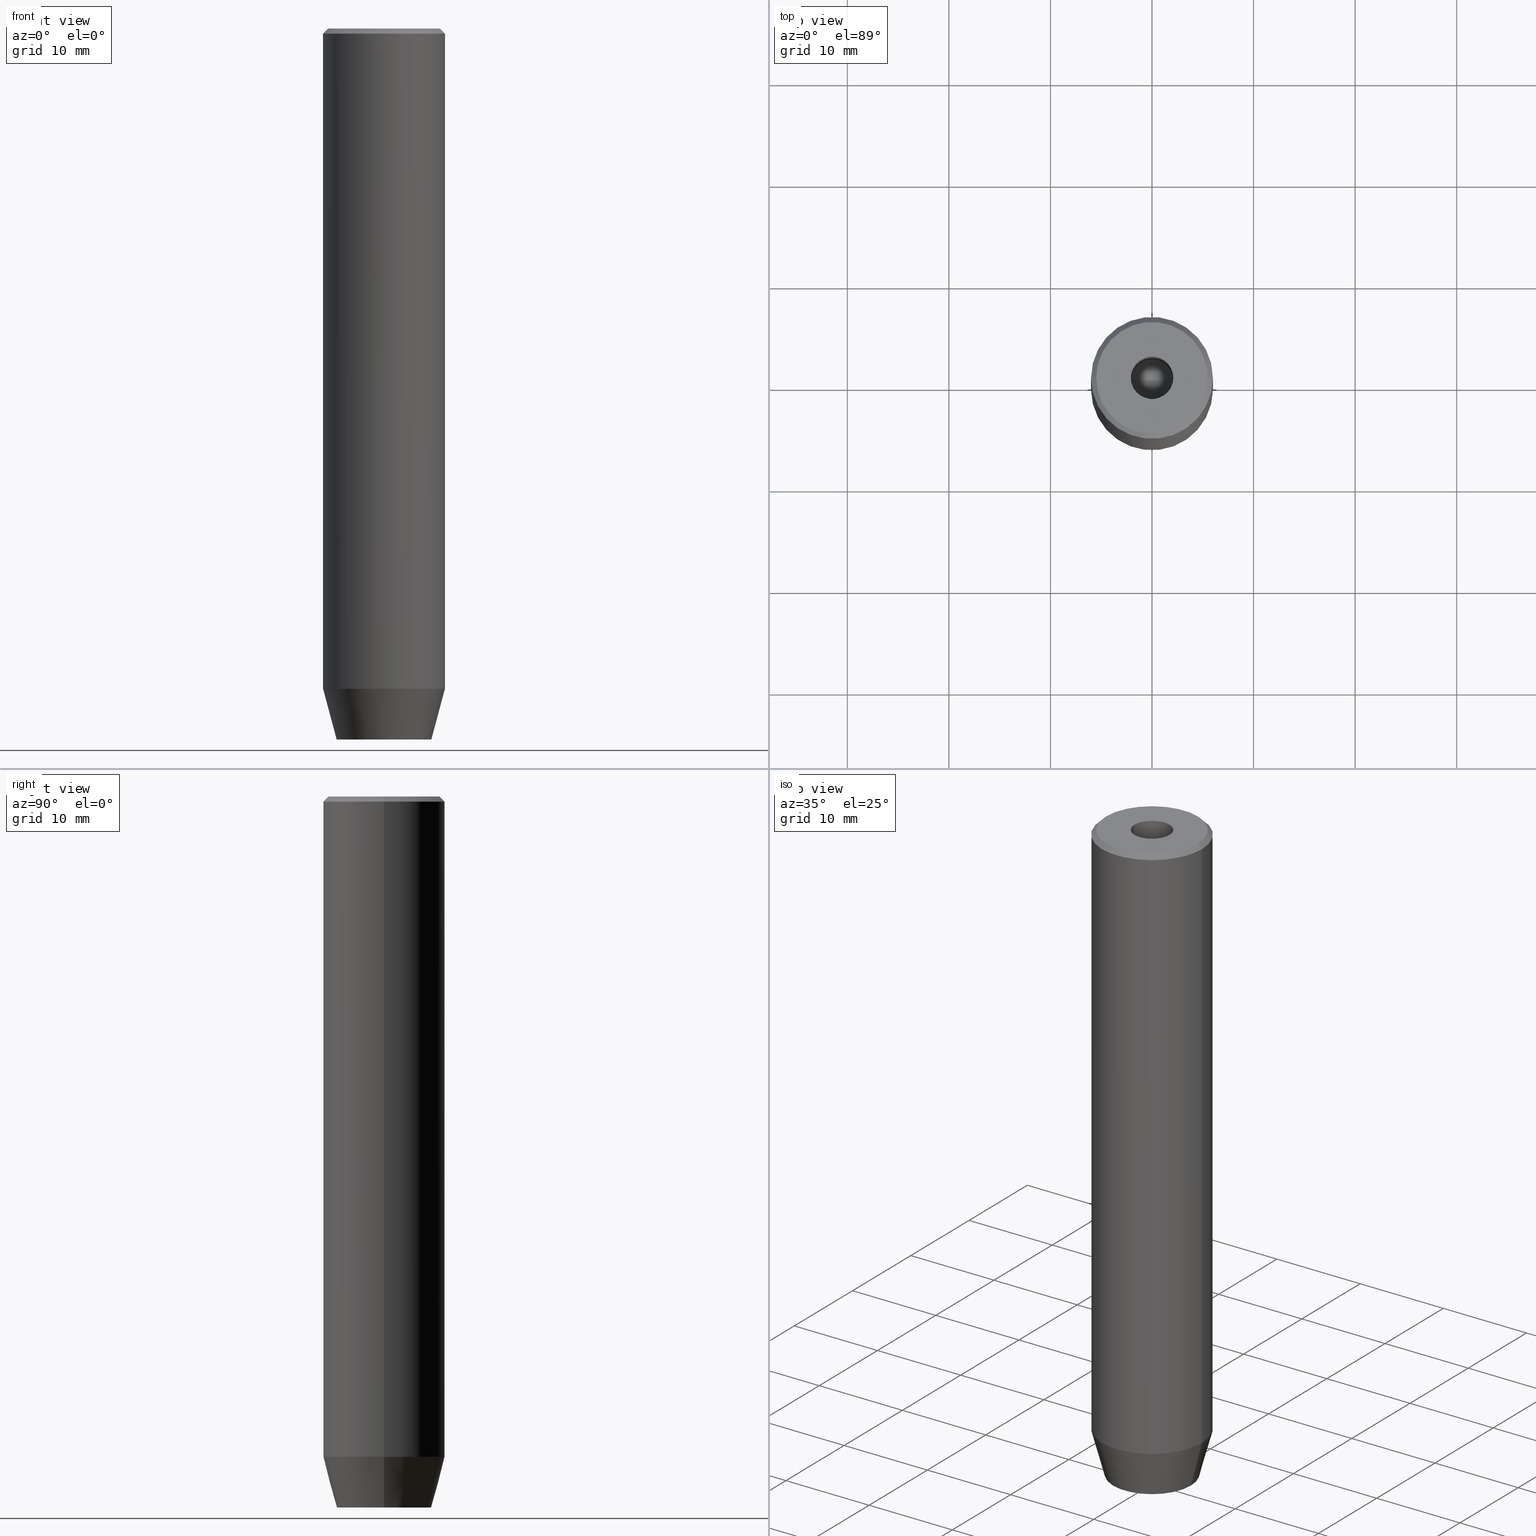
[diagram: canonical four-view strip — front | top / right | iso, engineering-drawing reading convention]
A machine part, canonical four-view strip (front | top / right | iso — engineering-drawing reading convention). The complete STEP part file that produces these views, byte-faithful:
ISO-10303-21;
HEADER;
FILE_DESCRIPTION (( 'STEP AP203' ),
    '1' );
FILE_NAME ('9f1b.STEP',
    '2024-01-02T21:56:35',
    ( '' ),
    ( '' ),
    'SwSTEP 2.0',
    'SolidWorks 2019',
    '' );
FILE_SCHEMA (( 'CONFIG_CONTROL_DESIGN' ));
ENDSEC;

DATA;
#1 = LINE ( 'NONE', #462, #402 ) ;
#2 = ORIENTED_EDGE ( 'NONE', *, *, #461, .F. ) ;
#3 = CIRCLE ( 'NONE', #528, 2.099999999999996980 ) ;
#4 = LINE ( 'NONE', #89, #274 ) ;
#5 = ORIENTED_EDGE ( 'NONE', *, *, #471, .T. ) ;
#6 = EDGE_CURVE ( 'NONE', #112, #92, #149, .T. ) ;
#7 = PLANE ( 'NONE',  #36 ) ;
#8 = ORIENTED_EDGE ( 'NONE', *, *, #510, .T. ) ;
#9 = DIRECTION ( 'NONE',  ( -0.000000000000000000, -0.000000000000000000, 1.000000000000000000 ) ) ;
#10 = ORIENTED_EDGE ( 'NONE', *, *, #444, .F. ) ;
#11 = CARTESIAN_POINT ( 'NONE',  ( -2.500000000000000444, -1.443375672974064328, -67.20000000000000284 ) ) ;
#12 = CIRCLE ( 'NONE', #198, 4.660254037844381081 ) ;
#13 = VERTEX_POINT ( 'NONE', #17 ) ;
#14 = ORGANIZATION ( 'NEUR�EN�', 'NEUR�EN�', '' ) ;
#15 = CC_DESIGN_PERSON_AND_ORGANIZATION_ASSIGNMENT ( #124, #77, ( #127 ) ) ;
#16 = CARTESIAN_POINT ( 'NONE',  ( 2.500000000000000000, 0.000000000000000000, -67.20000000000000284 ) ) ;
#17 = CARTESIAN_POINT ( 'NONE',  ( -2.500000000000000444, -1.443375672974064328, -70.00000000000000000 ) ) ;
#18 = CARTESIAN_POINT ( 'NONE',  ( -2.099999999999998757, 2.571758278209439985E-16, -1.990051048614449116E-16 ) ) ;
#19 = DIRECTION ( 'NONE',  ( 0.5000000000000001110, 0.8660254037844385966, -0.000000000000000000 ) ) ;
#20 = VERTEX_POINT ( 'NONE', #255 ) ;
#21 = DIRECTION ( 'NONE',  ( 1.000000000000000000, 0.000000000000000000, 0.000000000000000000 ) ) ;
#22 = AXIS2_PLACEMENT_3D ( 'NONE', #339, #251, #110 ) ;
#23 = LINE ( 'NONE', #200, #508 ) ;
#24 = VECTOR ( 'NONE', #531, 1000.000000000000114 ) ;
#25 = EDGE_LOOP ( 'NONE', ( #345, #114, #243, #119 ) ) ;
#26 = DIRECTION ( 'NONE',  ( -1.000000000000000000, 0.000000000000000000, 0.000000000000000000 ) ) ;
#27 = EDGE_CURVE ( 'NONE', #526, #13, #435, .T. ) ;
#28 = VERTEX_POINT ( 'NONE', #214 ) ;
#29 = ORIENTED_EDGE ( 'NONE', *, *, #552, .F. ) ;
#30 = SECURITY_CLASSIFICATION ( '', '', #223 ) ;
#31 = APPROVAL ( #304, 'NEUR�EN�' ) ;
#32 = CARTESIAN_POINT ( 'NONE',  ( 6.000000000000000000, 0.000000000000000000, -65.00000000000000000 ) ) ;
#33 = APPROVAL_ROLE ( '' ) ;
#34 = FACE_OUTER_BOUND ( 'NONE', #394, .T. ) ;
#35 = ADVANCED_FACE ( 'NONE', ( #385 ), #104, .T. ) ;
#36 = AXIS2_PLACEMENT_3D ( 'NONE', #58, #237, #272 ) ;
#37 = DIRECTION ( 'NONE',  ( -0.000000000000000000, -0.000000000000000000, 1.000000000000000000 ) ) ;
#38 = PERSON_AND_ORGANIZATION_ROLE ( 'design_supplier' ) ;
#39 = FACE_OUTER_BOUND ( 'NONE', #342, .T. ) ;
#40 = MECHANICAL_CONTEXT ( 'NONE', #188, 'mechanical' ) ;
#41 = DIRECTION ( 'NONE',  ( -0.000000000000000000, -0.000000000000000000, 1.000000000000000000 ) ) ;
#42 = ORIENTED_EDGE ( 'NONE', *, *, #153, .F. ) ;
#43 = CLOSED_SHELL ( 'NONE', ( #161, #334, #257, #35, #121, #291, #51, #326, #453, #558, #318, #517, #141, #168, #499, #78, #433, #177, #536 ) ) ;
#44 = VECTOR ( 'NONE', #191, 1000.000000000000000 ) ;
#45 = DIRECTION ( 'NONE',  ( -0.000000000000000000, -0.000000000000000000, -1.000000000000000000 ) ) ;
#46 = DIRECTION ( 'NONE',  ( -0.5000000000000001110, 0.8660254037844385966, 0.000000000000000000 ) ) ;
#47 = LOCAL_TIME ( 22, 56, 35.00000000000000000, #190 ) ;
#48 = ORIENTED_EDGE ( 'NONE', *, *, #409, .T. ) ;
#49 = LINE ( 'NONE', #234, #217 ) ;
#50 = ORIENTED_EDGE ( 'NONE', *, *, #301, .F. ) ;
#51 = ADVANCED_FACE ( 'NONE', ( #432, #337 ), #165, .T. ) ;
#52 = PERSON_AND_ORGANIZATION ( #584, #14 ) ;
#53 = VECTOR ( 'NONE', #142, 1000.000000000000000 ) ;
#54 = CYLINDRICAL_SURFACE ( 'NONE', #572, 6.000000000000000000 ) ;
#55 = ORIENTED_EDGE ( 'NONE', *, *, #544, .T. ) ;
#56 = APPROVAL ( #231, 'NEUR�EN�' ) ;
#57 = DATE_TIME_ROLE ( 'classification_date' ) ;
#58 = CARTESIAN_POINT ( 'NONE',  ( 0.000000000000000000, 4.660254037844381081, -70.00000000000000000 ) ) ;
#59 = LINE ( 'NONE', #62, #373 ) ;
#60 = EDGE_CURVE ( 'NONE', #467, #526, #23, .T. ) ;
#61 = VERTEX_POINT ( 'NONE', #481 ) ;
#62 = CARTESIAN_POINT ( 'NONE',  ( -1.249999999999999556, -2.165063509461096825, -67.20000000000000284 ) ) ;
#63 = PRODUCT_RELATED_PRODUCT_CATEGORY ( 'detail', '', ( #127 ) ) ;
#64 = LOCAL_TIME ( 22, 56, 35.00000000000000000, #356 ) ;
#65 = DIRECTION ( 'NONE',  ( 1.000000000000000000, 0.000000000000000000, 0.000000000000000000 ) ) ;
#66 = DIRECTION ( 'NONE',  ( 0.000000000000000000, 0.000000000000000000, -1.000000000000000000 ) ) ;
#67 = CARTESIAN_POINT ( 'NONE',  ( 0.000000000000000000, 0.000000000000000000, -65.00000000000000000 ) ) ;
#68 = DIRECTION ( 'NONE',  ( -0.000000000000000000, 0.000000000000000000, -1.000000000000000000 ) ) ;
#69 = ORIENTED_EDGE ( 'NONE', *, *, #70, .F. ) ;
#70 = EDGE_CURVE ( 'NONE', #28, #340, #118, .T. ) ;
#71 = DIRECTION ( 'NONE',  ( -0.000000000000000000, -0.000000000000000000, 1.000000000000000000 ) ) ;
#72 = VECTOR ( 'NONE', #292, 999.9999999999998863 ) ;
#73 = AXIS2_PLACEMENT_3D ( 'NONE', #164, #205, #384 ) ;
#74 = ORIENTED_EDGE ( 'NONE', *, *, #570, .T. ) ;
#75 = LINE ( 'NONE', #535, #427 ) ;
#76 = DIRECTION ( 'NONE',  ( 1.000000000000000000, 0.000000000000000000, 0.000000000000000000 ) ) ;
#77 = PERSON_AND_ORGANIZATION_ROLE ( 'design_owner' ) ;
#78 = ADVANCED_FACE ( 'NONE', ( #560 ), #246, .F. ) ;
#79 = CARTESIAN_POINT ( 'NONE',  ( 0.000000000000000000, 0.000000000000000000, -1.990051048614449116E-16 ) ) ;
#80 = CARTESIAN_POINT ( 'NONE',  ( 0.000000000000000000, 0.000000000000000000, -70.00000000000000000 ) ) ;
#81 = VECTOR ( 'NONE', #473, 1000.000000000000114 ) ;
#82 = DIRECTION ( 'NONE',  ( -0.7071067811865474617, 0.000000000000000000, -0.7071067811865474617 ) ) ;
#83 = ORIENTED_EDGE ( 'NONE', *, *, #477, .F. ) ;
#84 = PERSON_AND_ORGANIZATION_ROLE ( 'creator' ) ;
#85 = LINE ( 'NONE', #32, #24 ) ;
#86 = EDGE_CURVE ( 'NONE', #20, #267, #440, .T. ) ;
#87 = FACE_OUTER_BOUND ( 'NONE', #94, .T. ) ;
#88 = VECTOR ( 'NONE', #82, 1000.000000000000114 ) ;
#89 = CARTESIAN_POINT ( 'NONE',  ( -2.099999999999997868, 2.571758278209438999E-16, 0.000000000000000000 ) ) ;
#90 = FACE_OUTER_BOUND ( 'NONE', #166, .T. ) ;
#91 = CC_DESIGN_PERSON_AND_ORGANIZATION_ASSIGNMENT ( #448, #84, ( #400 ) ) ;
#92 = VERTEX_POINT ( 'NONE', #522 ) ;
#93 = DIRECTION ( 'NONE',  ( -0.000000000000000000, -0.000000000000000000, 1.000000000000000000 ) ) ;
#94 = EDGE_LOOP ( 'NONE', ( #42, #393, #227, #482 ) ) ;
#95 = DATE_AND_TIME ( #146, #47 ) ;
#96 = AXIS2_PLACEMENT_3D ( 'NONE', #201, #242, #391 ) ;
#97 = FACE_OUTER_BOUND ( 'NONE', #421, .T. ) ;
#98 = EDGE_LOOP ( 'NONE', ( #313, #543, #327, #74 ) ) ;
#99 = EDGE_CURVE ( 'NONE', #280, #467, #515, .T. ) ;
#100 = LINE ( 'NONE', #562, #81 ) ;
#101 = ORIENTED_EDGE ( 'NONE', *, *, #367, .T. ) ;
#102 = DIRECTION ( 'NONE',  ( -0.000000000000000000, -0.000000000000000000, -1.000000000000000000 ) ) ;
#103 = CARTESIAN_POINT ( 'NONE',  ( 1.249999999999999778, -2.165063509461096380, -67.20000000000000284 ) ) ;
#104 = CONICAL_SURFACE ( 'NONE', #381, 6.000000000000000000, 0.2617993877991502405 ) ;
#105 = CARTESIAN_POINT ( 'NONE',  ( 0.000000000000000000, 0.000000000000000000, 0.000000000000000000 ) ) ;
#106 = VECTOR ( 'NONE', #216, 1000.000000000000000 ) ;
#107 = ORIENTED_EDGE ( 'NONE', *, *, #6, .T. ) ;
#108 = EDGE_LOOP ( 'NONE', ( #10, #252, #503, #455 ) ) ;
#109 = DIRECTION ( 'NONE',  ( -0.8660254037844387076, 0.4999999999999998890, 0.000000000000000000 ) ) ;
#110 = DIRECTION ( 'NONE',  ( 1.000000000000000000, 0.000000000000000000, 0.000000000000000000 ) ) ;
#111 = EDGE_CURVE ( 'NONE', #280, #554, #430, .T. ) ;
#112 = VERTEX_POINT ( 'NONE', #174 ) ;
#113 = CARTESIAN_POINT ( 'NONE',  ( 2.099999999999996980, 0.000000000000000000, -15.00000000000000000 ) ) ;
#114 = ORIENTED_EDGE ( 'NONE', *, *, #484, .F. ) ;
#115 = ORIENTED_EDGE ( 'NONE', *, *, #494, .F. ) ;
#116 = CC_DESIGN_PERSON_AND_ORGANIZATION_ASSIGNMENT ( #575, #450, ( #486 ) ) ;
#117 = COORDINATED_UNIVERSAL_TIME_OFFSET ( 1, 0, .AHEAD. ) ;
#118 = CIRCLE ( 'NONE', #330, 6.000000000000000000 ) ;
#119 = ORIENTED_EDGE ( 'NONE', *, *, #307, .F. ) ;
#120 = AXIS2_PLACEMENT_3D ( 'NONE', #79, #122, #187 ) ;
#121 = ADVANCED_FACE ( 'NONE', ( #312 ), #363, .T. ) ;
#122 = DIRECTION ( 'NONE',  ( -0.000000000000000000, -0.000000000000000000, 1.000000000000000000 ) ) ;
#123 = ORIENTED_EDGE ( 'NONE', *, *, #70, .T. ) ;
#124 = PERSON_AND_ORGANIZATION ( #584, #14 ) ;
#125 = DIRECTION ( 'NONE',  ( -0.000000000000000000, -0.000000000000000000, -1.000000000000000000 ) ) ;
#126 = APPROVAL_ROLE ( '' ) ;
#127 = PRODUCT ( '9f1b', '9f1b', '', ( #40 ) ) ;
#128 = CARTESIAN_POINT ( 'NONE',  ( 0.000000000000000000, 0.000000000000000000, -15.00000000000000000 ) ) ;
#129 = AXIS2_PLACEMENT_3D ( 'NONE', #319, #403, #537 ) ;
#130 = ORIENTED_EDGE ( 'NONE', *, *, #153, .T. ) ;
#131 = AXIS2_PLACEMENT_3D ( 'NONE', #160, #524, #516 ) ;
#132 = APPROVAL_DATE_TIME ( #306, #204 ) ;
#133 = CARTESIAN_POINT ( 'NONE',  ( -2.500000000000000444, 0.000000000000000000, -67.20000000000000284 ) ) ;
#134 = EDGE_LOOP ( 'NONE', ( #143, #379, #148, #538, #425, #175 ) ) ;
#135 = EDGE_CURVE ( 'NONE', #523, #354, #359, .T. ) ;
#136 = LOCAL_TIME ( 22, 56, 35.00000000000000000, #117 ) ;
#137 = PLANE ( 'NONE',  #196 ) ;
#138 = EDGE_LOOP ( 'NONE', ( #50, #145, #48, #469 ) ) ;
#139 = DIRECTION ( 'NONE',  ( -0.8660254037844385966, -0.5000000000000001110, 0.000000000000000000 ) ) ;
#140 = VECTOR ( 'NONE', #45, 1000.000000000000000 ) ;
#141 = ADVANCED_FACE ( 'NONE', ( #496 ), #406, .F. ) ;
#142 = DIRECTION ( 'NONE',  ( 0.8660254037844385966, 0.5000000000000001110, 0.000000000000000000 ) ) ;
#143 = ORIENTED_EDGE ( 'NONE', *, *, #380, .T. ) ;
#144 = CARTESIAN_POINT ( 'NONE',  ( -2.500000000000000444, 1.443375672974064772, -67.20000000000000284 ) ) ;
#145 = ORIENTED_EDGE ( 'NONE', *, *, #194, .T. ) ;
#146 = CALENDAR_DATE ( 2024, 2, 1 ) ;
#147 = DIRECTION ( 'NONE',  ( 0.8660254037844385966, 0.5000000000000001110, 0.000000000000000000 ) ) ;
#148 = ORIENTED_EDGE ( 'NONE', *, *, #416, .T. ) ;
#149 = CIRCLE ( 'NONE', #22, 4.660254037844381081 ) ;
#150 = VECTOR ( 'NONE', #102, 1000.000000000000000 ) ;
#151 = CARTESIAN_POINT ( 'NONE',  ( -2.500000000000000444, 1.443375672974064772, -70.00000000000000000 ) ) ;
#152 = VERTEX_POINT ( 'NONE', #170 ) ;
#153 = EDGE_CURVE ( 'NONE', #267, #523, #465, .T. ) ;
#154 = SHAPE_DEFINITION_REPRESENTATION ( #366, #241 ) ;
#155 = CARTESIAN_POINT ( 'NONE',  ( 2.099999999999996980, 0.000000000000000000, -15.00000000000000000 ) ) ;
#156 = CARTESIAN_POINT ( 'NONE',  ( 1.250000000000000222, 2.165063509461096825, -67.20000000000000284 ) ) ;
#157 = DIRECTION ( 'NONE',  ( 1.000000000000000000, 0.000000000000000000, 0.000000000000000000 ) ) ;
#158 = ORIENTED_EDGE ( 'NONE', *, *, #392, .T. ) ;
#159 = VECTOR ( 'NONE', #125, 1000.000000000000000 ) ;
#160 = CARTESIAN_POINT ( 'NONE',  ( 0.000000000000000000, 0.000000000000000000, -67.20000000000000284 ) ) ;
#161 = ADVANCED_FACE ( 'NONE', ( #87 ), #449, .F. ) ;
#162 = CONICAL_SURFACE ( 'NONE', #581, 5.499999999999990230, 0.7853981633974482790 ) ;
#163 = DIRECTION ( 'NONE',  ( -0.8660254037844385966, 0.5000000000000001110, 0.000000000000000000 ) ) ;
#164 = CARTESIAN_POINT ( 'NONE',  ( 0.000000000000000000, 0.000000000000000000, 0.000000000000000000 ) ) ;
#165 = PLANE ( 'NONE',  #283 ) ;
#166 = EDGE_LOOP ( 'NONE', ( #567, #564 ) ) ;
#167 = FACE_OUTER_BOUND ( 'NONE', #134, .T. ) ;
#168 = ADVANCED_FACE ( 'NONE', ( #579 ), #137, .F. ) ;
#169 = CIRCLE ( 'NONE', #529, 6.000000000000000000 ) ;
#170 = CARTESIAN_POINT ( 'NONE',  ( 6.000000000000000000, 0.000000000000000000, -0.5000000000000099920 ) ) ;
#171 = PERSON_AND_ORGANIZATION ( #584, #14 ) ;
#172 = CARTESIAN_POINT ( 'NONE',  ( 2.099999999999997868, 0.000000000000000000, 0.000000000000000000 ) ) ;
#173 = PERSON_AND_ORGANIZATION ( #584, #14 ) ;
#174 = CARTESIAN_POINT ( 'NONE',  ( 4.660254037844381081, 0.000000000000000000, -70.00000000000000000 ) ) ;
#175 = ORIENTED_EDGE ( 'NONE', *, *, #222, .T. ) ;
#176 = PERSON_AND_ORGANIZATION_ROLE ( 'classification_officer' ) ;
#177 = ADVANCED_FACE ( 'NONE', ( #34 ), #293, .F. ) ;
#178 = CARTESIAN_POINT ( 'NONE',  ( 2.500000000000000000, -1.443375672974064106, -67.20000000000000284 ) ) ;
#179 = LINE ( 'NONE', #133, #563 ) ;
#180 = LINE ( 'NONE', #144, #140 ) ;
#181 = EDGE_LOOP ( 'NONE', ( #107, #329, #69, #493 ) ) ;
#182 = EDGE_CURVE ( 'NONE', #298, #61, #308, .T. ) ;
#183 = CARTESIAN_POINT ( 'NONE',  ( -6.000000000000000000, 7.347880794884119736E-16, 0.000000000000000000 ) ) ;
#184 = ORIENTED_EDGE ( 'NONE', *, *, #355, .F. ) ;
#185 = VECTOR ( 'NONE', #396, 1000.000000000000000 ) ;
#186 = AXIS2_PLACEMENT_3D ( 'NONE', #417, #279, #413 ) ;
#187 = DIRECTION ( 'NONE',  ( 1.000000000000000000, 0.000000000000000000, 0.000000000000000000 ) ) ;
#188 = APPLICATION_CONTEXT ( 'configuration controlled 3d designs of mechanical parts and assemblies' ) ;
#189 = EDGE_LOOP ( 'NONE', ( #295, #374 ) ) ;
#190 = COORDINATED_UNIVERSAL_TIME_OFFSET ( 1, 0, .AHEAD. ) ;
#191 = DIRECTION ( 'NONE',  ( 0.000000000000000000, -1.000000000000000000, 0.000000000000000000 ) ) ;
#192 = ORIENTED_EDGE ( 'NONE', *, *, #60, .T. ) ;
#193 = CARTESIAN_POINT ( 'NONE',  ( -1.250000000000000444, 2.165063509461097269, -70.00000000000000000 ) ) ;
#194 = EDGE_CURVE ( 'NONE', #340, #28, #311, .T. ) ;
#195 = EDGE_LOOP ( 'NONE', ( #476, #389 ) ) ;
#196 = AXIS2_PLACEMENT_3D ( 'NONE', #542, #447, #583 ) ;
#197 = AXIS2_PLACEMENT_3D ( 'NONE', #573, #218, #305 ) ;
#198 = AXIS2_PLACEMENT_3D ( 'NONE', #80, #263, #220 ) ;
#199 = CARTESIAN_POINT ( 'NONE',  ( 1.249999999999999778, -2.165063509461096380, -70.00000000000000000 ) ) ;
#200 = CARTESIAN_POINT ( 'NONE',  ( 0.000000000000000000, -2.886751345948128211, -67.20000000000000284 ) ) ;
#201 = CARTESIAN_POINT ( 'NONE',  ( 0.000000000000000000, 0.000000000000000000, 0.000000000000000000 ) ) ;
#202 = DIRECTION ( 'NONE',  ( -0.000000000000000000, -0.000000000000000000, 1.000000000000000000 ) ) ;
#203 = ORIENTED_EDGE ( 'NONE', *, *, #284, .F. ) ;
#204 = APPROVAL ( #268, 'NEUR�EN�' ) ;
#205 = DIRECTION ( 'NONE',  ( -0.000000000000000000, -0.000000000000000000, 1.000000000000000000 ) ) ;
#206 = ORIENTED_EDGE ( 'NONE', *, *, #86, .T. ) ;
#207 = VERTEX_POINT ( 'NONE', #266 ) ;
#208 = FACE_OUTER_BOUND ( 'NONE', #25, .T. ) ;
#209 = AXIS2_PLACEMENT_3D ( 'NONE', #16, #429, #68 ) ;
#210 = DIRECTION ( 'NONE',  ( -0.000000000000000000, -0.000000000000000000, -1.000000000000000000 ) ) ;
#211 = ORIENTED_EDGE ( 'NONE', *, *, #392, .F. ) ;
#212 = PLANE ( 'NONE',  #131 ) ;
#213 = EDGE_CURVE ( 'NONE', #92, #112, #12, .T. ) ;
#214 = CARTESIAN_POINT ( 'NONE',  ( 6.000000000000000000, 0.000000000000000000, -65.00000000000000000 ) ) ;
#215 =( NAMED_UNIT ( * ) SI_UNIT ( $, .STERADIAN. ) SOLID_ANGLE_UNIT ( ) );
#216 = DIRECTION ( 'NONE',  ( 0.8660254037844385966, -0.5000000000000001110, 0.000000000000000000 ) ) ;
#217 = VECTOR ( 'NONE', #500, 1000.000000000000000 ) ;
#218 = DIRECTION ( 'NONE',  ( -0.000000000000000000, -0.000000000000000000, 1.000000000000000000 ) ) ;
#219 = CALENDAR_DATE ( 2024, 2, 1 ) ;
#220 = DIRECTION ( 'NONE',  ( 1.000000000000000000, 0.000000000000000000, 0.000000000000000000 ) ) ;
#221 = APPLICATION_CONTEXT ( 'configuration controlled 3d designs of mechanical parts and assemblies' ) ;
#222 = EDGE_CURVE ( 'NONE', #415, #348, #179, .T. ) ;
#223 = SECURITY_CLASSIFICATION_LEVEL ( 'unclassified' ) ;
#224 = LINE ( 'NONE', #316, #106 ) ;
#225 = PERSON_AND_ORGANIZATION ( #584, #14 ) ;
#226 = CARTESIAN_POINT ( 'NONE',  ( 2.500000000000000000, 1.443375672974064328, -70.00000000000000000 ) ) ;
#227 = ORIENTED_EDGE ( 'NONE', *, *, #264, .T. ) ;
#228 = VECTOR ( 'NONE', #434, 1000.000000000000114 ) ;
#229 = DIRECTION ( 'NONE',  ( -0.000000000000000000, -0.000000000000000000, 1.000000000000000000 ) ) ;
#230 = EDGE_CURVE ( 'NONE', #207, #258, #224, .T. ) ;
#231 = APPROVAL_STATUS ( 'not_yet_approved' ) ;
#232 = LINE ( 'NONE', #183, #539 ) ;
#233 = ORIENTED_EDGE ( 'NONE', *, *, #585, .F. ) ;
#234 = CARTESIAN_POINT ( 'NONE',  ( 6.000000000000000000, 0.000000000000000000, 0.000000000000000000 ) ) ;
#235 = ORIENTED_EDGE ( 'NONE', *, *, #301, .T. ) ;
#236 = CIRCLE ( 'NONE', #466, 5.499999999999990230 ) ;
#237 = DIRECTION ( 'NONE',  ( 0.000000000000000000, 0.000000000000000000, -1.000000000000000000 ) ) ;
#238 = EDGE_CURVE ( 'NONE', #256, #270, #405, .T. ) ;
#239 = CARTESIAN_POINT ( 'NONE',  ( 2.099999999999998757, 0.000000000000000000, -1.990051048614449116E-16 ) ) ;
#240 = ORIENTED_EDGE ( 'NONE', *, *, #135, .T. ) ;
#241 = ADVANCED_BREP_SHAPE_REPRESENTATION ( '9f1b', ( #309, #412 ), #275 ) ;
#242 = DIRECTION ( 'NONE',  ( -0.000000000000000000, -0.000000000000000000, 1.000000000000000000 ) ) ;
#243 = ORIENTED_EDGE ( 'NONE', *, *, #182, .T. ) ;
#244 = CIRCLE ( 'NONE', #186, 6.000000000000000000 ) ;
#245 = DIRECTION ( 'NONE',  ( 1.000000000000000000, 0.000000000000000000, 0.000000000000000000 ) ) ;
#246 = PLANE ( 'NONE',  #361 ) ;
#247 = EDGE_CURVE ( 'NONE', #112, #28, #85, .T. ) ;
#248 = CARTESIAN_POINT ( 'NONE',  ( -2.500000000000000444, 0.000000000000000000, -67.20000000000000284 ) ) ;
#249 = DIRECTION ( 'NONE',  ( -0.000000000000000000, -0.000000000000000000, 1.000000000000000000 ) ) ;
#250 = CARTESIAN_POINT ( 'NONE',  ( 0.000000000000000000, 0.000000000000000000, -0.5000000000000099920 ) ) ;
#251 = DIRECTION ( 'NONE',  ( -0.000000000000000000, -0.000000000000000000, 1.000000000000000000 ) ) ;
#252 = ORIENTED_EDGE ( 'NONE', *, *, #213, .T. ) ;
#253 = DIRECTION ( 'NONE',  ( -1.000000000000000000, 0.000000000000000000, 0.000000000000000000 ) ) ;
#254 = AXIS2_PLACEMENT_3D ( 'NONE', #335, #71, #245 ) ;
#255 = CARTESIAN_POINT ( 'NONE',  ( -3.982994051648894933E-15, 0.000000000000000000, -16.26180729995787644 ) ) ;
#256 = VERTEX_POINT ( 'NONE', #451 ) ;
#257 = ADVANCED_FACE ( 'NONE', ( #39 ), #262, .T. ) ;
#258 = VERTEX_POINT ( 'NONE', #226 ) ;
#259 = DATE_AND_TIME ( #219, #358 ) ;
#260 = DIRECTION ( 'NONE',  ( -0.000000000000000000, -0.000000000000000000, 1.000000000000000000 ) ) ;
#261 =( LENGTH_UNIT ( ) NAMED_UNIT ( * ) SI_UNIT ( .MILLI., .METRE. ) );
#262 = CONICAL_SURFACE ( 'NONE', #302, 5.499999999999990230, 0.7853981633974482790 ) ;
#263 = DIRECTION ( 'NONE',  ( -0.000000000000000000, -0.000000000000000000, 1.000000000000000000 ) ) ;
#264 = EDGE_CURVE ( 'NONE', #506, #354, #322, .T. ) ;
#265 = DIRECTION ( 'NONE',  ( 0.000000000000000000, 0.000000000000000000, 1.000000000000000000 ) ) ;
#266 = CARTESIAN_POINT ( 'NONE',  ( -2.168404344971008868E-16, 2.886751345948129543, -70.00000000000000000 ) ) ;
#267 = VERTEX_POINT ( 'NONE', #372 ) ;
#268 = APPROVAL_STATUS ( 'not_yet_approved' ) ;
#269 = DIRECTION ( 'NONE',  ( 1.000000000000000000, 0.000000000000000000, 0.000000000000000000 ) ) ;
#270 = VERTEX_POINT ( 'NONE', #468 ) ;
#271 = EDGE_CURVE ( 'NONE', #258, #554, #502, .T. ) ;
#272 = DIRECTION ( 'NONE',  ( -1.000000000000000000, 0.000000000000000000, -0.000000000000000000 ) ) ;
#273 = AXIS2_PLACEMENT_3D ( 'NONE', #431, #480, #387 ) ;
#274 = VECTOR ( 'NONE', #420, 1000.000000000000000 ) ;
#275 =( GEOMETRIC_REPRESENTATION_CONTEXT ( 3 ) GLOBAL_UNCERTAINTY_ASSIGNED_CONTEXT ( ( #401 ) ) GLOBAL_UNIT_ASSIGNED_CONTEXT ( ( #261, #495, #215 ) ) REPRESENTATION_CONTEXT ( 'NONE', 'WORKASPACE' ) );
#276 = CARTESIAN_POINT ( 'NONE',  ( -2.500000000000000444, -1.443375672974064328, -67.20000000000000284 ) ) ;
#277 = VERTEX_POINT ( 'NONE', #151 ) ;
#278 = APPROVAL_ROLE ( '' ) ;
#279 = DIRECTION ( 'NONE',  ( 0.000000000000000000, 0.000000000000000000, -1.000000000000000000 ) ) ;
#280 = VERTEX_POINT ( 'NONE', #511 ) ;
#281 = FACE_BOUND ( 'NONE', #282, .T. ) ;
#282 = EDGE_LOOP ( 'NONE', ( #211, #184, #520, #343, #532, #287 ) ) ;
#283 = AXIS2_PLACEMENT_3D ( 'NONE', #525, #383, #297 ) ;
#284 = EDGE_CURVE ( 'NONE', #267, #506, #4, .T. ) ;
#285 = AXIS2_PLACEMENT_3D ( 'NONE', #248, #253, #475 ) ;
#286 = CARTESIAN_POINT ( 'NONE',  ( 2.500000000000000000, 0.000000000000000000, -70.00000000000000000 ) ) ;
#287 = ORIENTED_EDGE ( 'NONE', *, *, #230, .F. ) ;
#288 = PLANE ( 'NONE',  #209 ) ;
#289 = EDGE_LOOP ( 'NONE', ( #501, #512, #83, #192 ) ) ;
#290 = LINE ( 'NONE', #446, #418 ) ;
#291 = ADVANCED_FACE ( 'NONE', ( #281, #90 ), #7, .T. ) ;
#292 = DIRECTION ( 'NONE',  ( -0.8660254037844387076, -0.5000000000000001110, 0.000000000000000000 ) ) ;
#293 = CONICAL_SURFACE ( 'NONE', #483, 2.099999999999996980, 1.029744258676652535 ) ;
#294 = DIRECTION ( 'NONE',  ( 0.8571673007021113344, 0.000000000000000000, 0.5150380749100558209 ) ) ;
#295 = ORIENTED_EDGE ( 'NONE', *, *, #471, .F. ) ;
#296 = CARTESIAN_POINT ( 'NONE',  ( 5.499999999999990230, 6.735557395310430190E-16, 0.000000000000000000 ) ) ;
#297 = DIRECTION ( 'NONE',  ( 1.000000000000000000, 0.000000000000000000, 0.000000000000000000 ) ) ;
#298 = VERTEX_POINT ( 'NONE', #422 ) ;
#299 = CARTESIAN_POINT ( 'NONE',  ( 0.000000000000000000, -2.886751345948128211, -67.20000000000000284 ) ) ;
#300 = EDGE_LOOP ( 'NONE', ( #333, #320, #441, #580 ) ) ;
#301 = EDGE_CURVE ( 'NONE', #340, #61, #232, .T. ) ;
#302 = AXIS2_PLACEMENT_3D ( 'NONE', #399, #454, #571 ) ;
#303 = EDGE_LOOP ( 'NONE', ( #203, #370, #240, #5 ) ) ;
#304 = APPROVAL_STATUS ( 'not_yet_approved' ) ;
#305 = DIRECTION ( 'NONE',  ( 1.000000000000000000, 0.000000000000000000, 0.000000000000000000 ) ) ;
#306 = DATE_AND_TIME ( #533, #64 ) ;
#307 = EDGE_CURVE ( 'NONE', #152, #61, #244, .T. ) ;
#308 = LINE ( 'NONE', #353, #88 ) ;
#309 = MANIFOLD_SOLID_BREP ( 'Vrt�k z�vitn�ku pro M5 z�vit1', #43 ) ;
#310 = DIRECTION ( 'NONE',  ( -0.000000000000000000, -0.000000000000000000, -1.000000000000000000 ) ) ;
#311 = CIRCLE ( 'NONE', #331, 6.000000000000000000 ) ;
#312 = FACE_OUTER_BOUND ( 'NONE', #509, .T. ) ;
#313 = ORIENTED_EDGE ( 'NONE', *, *, #355, .T. ) ;
#314 = DESIGN_CONTEXT ( 'detailed design', #221, 'design' ) ;
#315 = COORDINATED_UNIVERSAL_TIME_OFFSET ( 1, 0, .AHEAD. ) ;
#316 = CARTESIAN_POINT ( 'NONE',  ( 1.250000000000000222, 2.165063509461096825, -70.00000000000000000 ) ) ;
#317 = APPROVAL_PERSON_ORGANIZATION ( #225, #31, #33 ) ;
#318 = ADVANCED_FACE ( 'NONE', ( #321 ), #377, .F. ) ;
#319 = CARTESIAN_POINT ( 'NONE',  ( -1.249999999999999556, -2.165063509461096825, -67.20000000000000284 ) ) ;
#320 = ORIENTED_EDGE ( 'NONE', *, *, #111, .F. ) ;
#321 = FACE_OUTER_BOUND ( 'NONE', #586, .T. ) ;
#322 = CIRCLE ( 'NONE', #120, 2.099999999999998757 ) ;
#323 = APPROVAL_PERSON_ORGANIZATION ( #171, #204, #126 ) ;
#324 = DIRECTION ( 'NONE',  ( 1.000000000000000000, 0.000000000000000000, 0.000000000000000000 ) ) ;
#325 = DIRECTION ( 'NONE',  ( 1.000000000000000000, 0.000000000000000000, 0.000000000000000000 ) ) ;
#326 = ADVANCED_FACE ( 'NONE', ( #505 ), #54, .T. ) ;
#327 = ORIENTED_EDGE ( 'NONE', *, *, #222, .F. ) ;
#328 = CARTESIAN_POINT ( 'NONE',  ( -1.250000000000000444, 2.165063509461097269, -67.20000000000000284 ) ) ;
#329 = ORIENTED_EDGE ( 'NONE', *, *, #444, .T. ) ;
#330 = AXIS2_PLACEMENT_3D ( 'NONE', #485, #202, #76 ) ;
#331 = AXIS2_PLACEMENT_3D ( 'NONE', #489, #37, #445 ) ;
#332 = CARTESIAN_POINT ( 'NONE',  ( -6.000000000000000000, 7.347880794884119736E-16, -65.00000000000000000 ) ) ;
#333 = ORIENTED_EDGE ( 'NONE', *, *, #271, .T. ) ;
#334 = ADVANCED_FACE ( 'NONE', ( #97 ), #519, .F. ) ;
#335 = CARTESIAN_POINT ( 'NONE',  ( 0.000000000000000000, 0.000000000000000000, -1.990051048614449116E-16 ) ) ;
#336 = CC_DESIGN_APPROVAL ( #56, ( #30 ) ) ;
#337 = FACE_OUTER_BOUND ( 'NONE', #195, .T. ) ;
#338 = FACE_OUTER_BOUND ( 'NONE', #108, .T. ) ;
#339 = CARTESIAN_POINT ( 'NONE',  ( 0.000000000000000000, 0.000000000000000000, -70.00000000000000000 ) ) ;
#340 = VERTEX_POINT ( 'NONE', #332 ) ;
#341 = FACE_OUTER_BOUND ( 'NONE', #98, .T. ) ;
#342 = EDGE_LOOP ( 'NONE', ( #2, #55, #29, #436 ) ) ;
#343 = ORIENTED_EDGE ( 'NONE', *, *, #510, .F. ) ;
#344 = DIRECTION ( 'NONE',  ( 0.000000000000000000, 0.000000000000000000, -1.000000000000000000 ) ) ;
#345 = ORIENTED_EDGE ( 'NONE', *, *, #544, .F. ) ;
#346 = CC_DESIGN_DATE_AND_TIME_ASSIGNMENT ( #259, #488, ( #400 ) ) ;
#347 = FACE_OUTER_BOUND ( 'NONE', #300, .T. ) ;
#348 = VERTEX_POINT ( 'NONE', #549 ) ;
#349 = CC_DESIGN_PERSON_AND_ORGANIZATION_ASSIGNMENT ( #173, #38, ( #486 ) ) ;
#350 = AXIS2_PLACEMENT_3D ( 'NONE', #357, #41, #269 ) ;
#351 = VECTOR ( 'NONE', #294, 1000.000000000000000 ) ;
#352 = DIRECTION ( 'NONE',  ( 1.000000000000000000, 0.000000000000000000, 0.000000000000000000 ) ) ;
#353 = CARTESIAN_POINT ( 'NONE',  ( -5.499999999999990230, 0.000000000000000000, 0.000000000000000000 ) ) ;
#354 = VERTEX_POINT ( 'NONE', #239 ) ;
#355 = EDGE_CURVE ( 'NONE', #13, #277, #1, .T. ) ;
#356 = COORDINATED_UNIVERSAL_TIME_OFFSET ( 1, 0, .AHEAD. ) ;
#357 = CARTESIAN_POINT ( 'NONE',  ( 0.000000000000000000, 0.000000000000000000, 0.000000000000000000 ) ) ;
#358 = LOCAL_TIME ( 22, 56, 35.00000000000000000, #315 ) ;
#359 = LINE ( 'NONE', #172, #457 ) ;
#360 = COORDINATED_UNIVERSAL_TIME_OFFSET ( 1, 0, .AHEAD. ) ;
#361 = AXIS2_PLACEMENT_3D ( 'NONE', #156, #19, #163 ) ;
#362 = CIRCLE ( 'NONE', #96, 5.499999999999990230 ) ;
#363 = CYLINDRICAL_SURFACE ( 'NONE', #197, 6.000000000000000000 ) ;
#364 = ORIENTED_EDGE ( 'NONE', *, *, #86, .F. ) ;
#365 = DIRECTION ( 'NONE',  ( -0.000000000000000000, -0.000000000000000000, 1.000000000000000000 ) ) ;
#366 = PRODUCT_DEFINITION_SHAPE ( 'NONE', 'NONE',  #400 ) ;
#367 = EDGE_CURVE ( 'NONE', #348, #277, #180, .T. ) ;
#368 = LOCAL_TIME ( 22, 56, 35.00000000000000000, #360 ) ;
#369 = DIRECTION ( 'NONE',  ( -0.000000000000000000, -0.000000000000000000, 1.000000000000000000 ) ) ;
#370 = ORIENTED_EDGE ( 'NONE', *, *, #375, .F. ) ;
#371 = DATE_AND_TIME ( #463, #368 ) ;
#372 = CARTESIAN_POINT ( 'NONE',  ( -2.099999999999996980, 2.571758278209438013E-16, -15.00000000000000000 ) ) ;
#373 = VECTOR ( 'NONE', #109, 1000.000000000000114 ) ;
#374 = ORIENTED_EDGE ( 'NONE', *, *, #264, .F. ) ;
#375 = EDGE_CURVE ( 'NONE', #523, #267, #3, .T. ) ;
#376 = CARTESIAN_POINT ( 'NONE',  ( 0.000000000000000000, 0.000000000000000000, -15.00000000000000000 ) ) ;
#377 = PLANE ( 'NONE',  #410 ) ;
#378 = LINE ( 'NONE', #507, #390 ) ;
#379 = ORIENTED_EDGE ( 'NONE', *, *, #238, .T. ) ;
#380 = EDGE_CURVE ( 'NONE', #348, #256, #464, .T. ) ;
#381 = AXIS2_PLACEMENT_3D ( 'NONE', #67, #249, #65 ) ;
#382 = CARTESIAN_POINT ( 'NONE',  ( 0.000000000000000000, -2.886751345948128211, -70.00000000000000000 ) ) ;
#383 = DIRECTION ( 'NONE',  ( 0.000000000000000000, -0.000000000000000000, 1.000000000000000000 ) ) ;
#384 = DIRECTION ( 'NONE',  ( 1.000000000000000000, 0.000000000000000000, 0.000000000000000000 ) ) ;
#385 = FACE_OUTER_BOUND ( 'NONE', #181, .T. ) ;
#386 = ORIENTED_EDGE ( 'NONE', *, *, #99, .F. ) ;
#387 = DIRECTION ( 'NONE',  ( 1.000000000000000000, 0.000000000000000000, 0.000000000000000000 ) ) ;
#388 = CARTESIAN_POINT ( 'NONE',  ( -2.099999999999996980, 2.571758278209438013E-16, -15.00000000000000000 ) ) ;
#389 = ORIENTED_EDGE ( 'NONE', *, *, #461, .T. ) ;
#390 = VECTOR ( 'NONE', #553, 1000.000000000000000 ) ;
#391 = DIRECTION ( 'NONE',  ( 1.000000000000000000, 0.000000000000000000, 0.000000000000000000 ) ) ;
#392 = EDGE_CURVE ( 'NONE', #277, #207, #545, .T. ) ;
#393 = ORIENTED_EDGE ( 'NONE', *, *, #284, .T. ) ;
#394 = EDGE_LOOP ( 'NONE', ( #364, #569, #546 ) ) ;
#395 = LINE ( 'NONE', #155, #351 ) ;
#396 = DIRECTION ( 'NONE',  ( -0.8571673007021113344, 1.049727191138617463E-16, 0.5150380749100558209 ) ) ;
#397 = EDGE_LOOP ( 'NONE', ( #577, #233, #561, #541 ) ) ;
#398 = APPLICATION_PROTOCOL_DEFINITION ( 'international standard', 'config_control_design', 1994, #221 ) ;
#399 = CARTESIAN_POINT ( 'NONE',  ( 0.000000000000000000, 0.000000000000000000, 0.000000000000000000 ) ) ;
#400 = PRODUCT_DEFINITION ( 'NEZN�M�', '', #486, #314 ) ;
#401 = UNCERTAINTY_MEASURE_WITH_UNIT (LENGTH_MEASURE( 1.000000000000000082E-05 ), #261, 'distance_accuracy_value', 'NONE');
#402 = VECTOR ( 'NONE', #548, 1000.000000000000000 ) ;
#403 = DIRECTION ( 'NONE',  ( -0.4999999999999998890, -0.8660254037844387076, 0.000000000000000000 ) ) ;
#404 = APPROVAL_DATE_TIME ( #582, #31 ) ;
#405 = LINE ( 'NONE', #576, #458 ) ;
#406 = PLANE ( 'NONE',  #129 ) ;
#407 = ORIENTED_EDGE ( 'NONE', *, *, #60, .F. ) ;
#408 = CALENDAR_DATE ( 2024, 2, 1 ) ;
#409 = EDGE_CURVE ( 'NONE', #28, #152, #49, .T. ) ;
#410 = AXIS2_PLACEMENT_3D ( 'NONE', #414, #46, #139 ) ;
#411 = DIRECTION ( 'NONE',  ( 0.000000000000000000, 1.000000000000000000, 0.000000000000000000 ) ) ;
#412 = AXIS2_PLACEMENT_3D ( 'NONE', #491, #265, #352 ) ;
#413 = DIRECTION ( 'NONE',  ( 1.000000000000000000, 0.000000000000000000, 0.000000000000000000 ) ) ;
#414 = CARTESIAN_POINT ( 'NONE',  ( -1.250000000000000444, 2.165063509461097269, -67.20000000000000284 ) ) ;
#415 = VERTEX_POINT ( 'NONE', #276 ) ;
#416 = EDGE_CURVE ( 'NONE', #270, #280, #378, .T. ) ;
#417 = CARTESIAN_POINT ( 'NONE',  ( 0.000000000000000000, 0.000000000000000000, -0.5000000000000099920 ) ) ;
#418 = VECTOR ( 'NONE', #310, 1000.000000000000000 ) ;
#419 = VERTEX_POINT ( 'NONE', #460 ) ;
#420 = DIRECTION ( 'NONE',  ( -0.000000000000000000, -0.000000000000000000, 1.000000000000000000 ) ) ;
#421 = EDGE_LOOP ( 'NONE', ( #115, #206, #130 ) ) ;
#422 = CARTESIAN_POINT ( 'NONE',  ( -5.499999999999990230, 0.000000000000000000, 0.000000000000000000 ) ) ;
#423 = DIRECTION ( 'NONE',  ( -0.000000000000000000, -0.000000000000000000, 1.000000000000000000 ) ) ;
#424 = CC_DESIGN_PERSON_AND_ORGANIZATION_ASSIGNMENT ( #578, #176, ( #30 ) ) ;
#425 = ORIENTED_EDGE ( 'NONE', *, *, #477, .T. ) ;
#426 = VECTOR ( 'NONE', #521, 999.9999999999998863 ) ;
#427 = VECTOR ( 'NONE', #442, 1000.000000000000000 ) ;
#428 = APPROVAL_DATE_TIME ( #95, #56 ) ;
#429 = DIRECTION ( 'NONE',  ( 1.000000000000000000, 0.000000000000000000, -0.000000000000000000 ) ) ;
#430 = LINE ( 'NONE', #178, #159 ) ;
#431 = CARTESIAN_POINT ( 'NONE',  ( 0.000000000000000000, 0.000000000000000000, -65.00000000000000000 ) ) ;
#432 = FACE_BOUND ( 'NONE', #189, .T. ) ;
#433 = ADVANCED_FACE ( 'NONE', ( #167 ), #212, .T. ) ;
#434 = DIRECTION ( 'NONE',  ( 0.7071067811865474617, 8.659560562354932858E-17, -0.7071067811865474617 ) ) ;
#435 = LINE ( 'NONE', #518, #437 ) ;
#436 = ORIENTED_EDGE ( 'NONE', *, *, #182, .F. ) ;
#437 = VECTOR ( 'NONE', #556, 1000.000000000000114 ) ;
#438 = CIRCLE ( 'NONE', #254, 2.099999999999998757 ) ;
#439 = CYLINDRICAL_SURFACE ( 'NONE', #73, 2.099999999999997868 ) ;
#440 = LINE ( 'NONE', #388, #185 ) ;
#441 = ORIENTED_EDGE ( 'NONE', *, *, #416, .F. ) ;
#442 = DIRECTION ( 'NONE',  ( -0.000000000000000000, -0.000000000000000000, -1.000000000000000000 ) ) ;
#443 = APPROVAL_PERSON_ORGANIZATION ( #52, #56, #278 ) ;
#444 = EDGE_CURVE ( 'NONE', #92, #340, #100, .T. ) ;
#445 = DIRECTION ( 'NONE',  ( 1.000000000000000000, 0.000000000000000000, 0.000000000000000000 ) ) ;
#446 = CARTESIAN_POINT ( 'NONE',  ( -1.084202172485504434E-16, 2.886751345948129543, -67.20000000000000284 ) ) ;
#447 = DIRECTION ( 'NONE',  ( 0.5000000000000000000, -0.8660254037844387076, 0.000000000000000000 ) ) ;
#448 = PERSON_AND_ORGANIZATION ( #584, #14 ) ;
#449 = CYLINDRICAL_SURFACE ( 'NONE', #350, 2.099999999999997868 ) ;
#450 = PERSON_AND_ORGANIZATION_ROLE ( 'creator' ) ;
#451 = CARTESIAN_POINT ( 'NONE',  ( -1.084202172485504434E-16, 2.886751345948129543, -67.20000000000000284 ) ) ;
#452 = EDGE_LOOP ( 'NONE', ( #8, #407, #386, #566 ) ) ;
#453 = ADVANCED_FACE ( 'NONE', ( #338 ), #547, .T. ) ;
#454 = DIRECTION ( 'NONE',  ( 0.000000000000000000, 0.000000000000000000, -1.000000000000000000 ) ) ;
#455 = ORIENTED_EDGE ( 'NONE', *, *, #194, .F. ) ;
#456 = AXIS2_PLACEMENT_3D ( 'NONE', #128, #260, #492 ) ;
#457 = VECTOR ( 'NONE', #365, 1000.000000000000000 ) ;
#458 = VECTOR ( 'NONE', #487, 1000.000000000000000 ) ;
#459 = DIRECTION ( 'NONE',  ( 1.000000000000000000, 0.000000000000000000, 0.000000000000000000 ) ) ;
#460 = CARTESIAN_POINT ( 'NONE',  ( 5.499999999999990230, 7.041719095097274963E-16, 0.000000000000000000 ) ) ;
#461 = EDGE_CURVE ( 'NONE', #419, #298, #362, .T. ) ;
#462 = CARTESIAN_POINT ( 'NONE',  ( -2.500000000000000444, 0.000000000000000000, -70.00000000000000000 ) ) ;
#463 = CALENDAR_DATE ( 2024, 2, 1 ) ;
#464 = LINE ( 'NONE', #328, #474 ) ;
#465 = CIRCLE ( 'NONE', #456, 2.099999999999996980 ) ;
#466 = AXIS2_PLACEMENT_3D ( 'NONE', #105, #423, #157 ) ;
#467 = VERTEX_POINT ( 'NONE', #299 ) ;
#468 = CARTESIAN_POINT ( 'NONE',  ( 2.500000000000000000, 1.443375672974064328, -67.20000000000000284 ) ) ;
#469 = ORIENTED_EDGE ( 'NONE', *, *, #307, .T. ) ;
#470 = CC_DESIGN_APPROVAL ( #31, ( #486 ) ) ;
#471 = EDGE_CURVE ( 'NONE', #354, #506, #438, .T. ) ;
#472 = LINE ( 'NONE', #11, #150 ) ;
#473 = DIRECTION ( 'NONE',  ( -0.2588190451025214611, 3.169619151431774186E-17, 0.9659258262890679791 ) ) ;
#474 = VECTOR ( 'NONE', #147, 1000.000000000000000 ) ;
#475 = DIRECTION ( 'NONE',  ( 0.000000000000000000, 0.000000000000000000, 1.000000000000000000 ) ) ;
#476 = ORIENTED_EDGE ( 'NONE', *, *, #484, .T. ) ;
#477 = EDGE_CURVE ( 'NONE', #467, #415, #59, .T. ) ;
#478 = LINE ( 'NONE', #199, #426 ) ;
#479 = ORIENTED_EDGE ( 'NONE', *, *, #574, .F. ) ;
#480 = DIRECTION ( 'NONE',  ( -0.000000000000000000, -0.000000000000000000, 1.000000000000000000 ) ) ;
#481 = CARTESIAN_POINT ( 'NONE',  ( -6.000000000000000000, 7.347880794884119736E-16, -0.5000000000000099920 ) ) ;
#482 = ORIENTED_EDGE ( 'NONE', *, *, #135, .F. ) ;
#483 = AXIS2_PLACEMENT_3D ( 'NONE', #540, #497, #534 ) ;
#484 = EDGE_CURVE ( 'NONE', #298, #419, #236, .T. ) ;
#485 = CARTESIAN_POINT ( 'NONE',  ( 0.000000000000000000, 0.000000000000000000, -65.00000000000000000 ) ) ;
#486 = PRODUCT_DEFINITION_FORMATION_WITH_SPECIFIED_SOURCE ( 'LIBOVOLN�', '', #127, .NOT_KNOWN. ) ;
#487 = DIRECTION ( 'NONE',  ( 0.8660254037844385966, -0.5000000000000001110, 0.000000000000000000 ) ) ;
#488 = DATE_TIME_ROLE ( 'creation_date' ) ;
#489 = CARTESIAN_POINT ( 'NONE',  ( 0.000000000000000000, 0.000000000000000000, -65.00000000000000000 ) ) ;
#490 = AXIS2_PLACEMENT_3D ( 'NONE', #376, #9, #324 ) ;
#491 = CARTESIAN_POINT ( 'NONE',  ( 0.000000000000000000, 0.000000000000000000, 0.000000000000000000 ) ) ;
#492 = DIRECTION ( 'NONE',  ( 1.000000000000000000, 0.000000000000000000, 0.000000000000000000 ) ) ;
#493 = ORIENTED_EDGE ( 'NONE', *, *, #247, .F. ) ;
#494 = EDGE_CURVE ( 'NONE', #20, #523, #395, .T. ) ;
#495 =( NAMED_UNIT ( * ) PLANE_ANGLE_UNIT ( ) SI_UNIT ( $, .RADIAN. ) );
#496 = FACE_OUTER_BOUND ( 'NONE', #289, .T. ) ;
#497 = DIRECTION ( 'NONE',  ( -0.000000000000000000, -0.000000000000000000, 1.000000000000000000 ) ) ;
#498 = ORIENTED_EDGE ( 'NONE', *, *, #552, .T. ) ;
#499 = ADVANCED_FACE ( 'NONE', ( #347 ), #288, .F. ) ;
#500 = DIRECTION ( 'NONE',  ( -0.000000000000000000, -0.000000000000000000, 1.000000000000000000 ) ) ;
#501 = ORIENTED_EDGE ( 'NONE', *, *, #27, .T. ) ;
#502 = LINE ( 'NONE', #286, #44 ) ;
#503 = ORIENTED_EDGE ( 'NONE', *, *, #247, .T. ) ;
#504 = CC_DESIGN_SECURITY_CLASSIFICATION ( #30, ( #486 ) ) ;
#505 = FACE_OUTER_BOUND ( 'NONE', #138, .T. ) ;
#506 = VERTEX_POINT ( 'NONE', #18 ) ;
#507 = CARTESIAN_POINT ( 'NONE',  ( 2.500000000000000000, 0.000000000000000000, -67.20000000000000284 ) ) ;
#508 = VECTOR ( 'NONE', #210, 1000.000000000000000 ) ;
#509 = EDGE_LOOP ( 'NONE', ( #123, #235, #498, #550 ) ) ;
#510 = EDGE_CURVE ( 'NONE', #554, #526, #478, .T. ) ;
#511 = CARTESIAN_POINT ( 'NONE',  ( 2.500000000000000000, -1.443375672974064106, -67.20000000000000284 ) ) ;
#512 = ORIENTED_EDGE ( 'NONE', *, *, #570, .F. ) ;
#513 = CC_DESIGN_DATE_AND_TIME_ASSIGNMENT ( #371, #57, ( #30 ) ) ;
#514 = FACE_OUTER_BOUND ( 'NONE', #303, .T. ) ;
#515 = LINE ( 'NONE', #103, #72 ) ;
#516 = DIRECTION ( 'NONE',  ( -1.000000000000000000, 0.000000000000000000, -0.000000000000000000 ) ) ;
#517 = ADVANCED_FACE ( 'NONE', ( #341 ), #559, .F. ) ;
#518 = CARTESIAN_POINT ( 'NONE',  ( -1.249999999999999556, -2.165063509461096825, -70.00000000000000000 ) ) ;
#519 = CONICAL_SURFACE ( 'NONE', #490, 2.099999999999996980, 1.029744258676652535 ) ;
#520 = ORIENTED_EDGE ( 'NONE', *, *, #27, .F. ) ;
#521 = DIRECTION ( 'NONE',  ( -0.8660254037844387076, -0.5000000000000001110, 0.000000000000000000 ) ) ;
#522 = CARTESIAN_POINT ( 'NONE',  ( -4.660254037844381081, 6.527522992771884330E-16, -70.00000000000000000 ) ) ;
#523 = VERTEX_POINT ( 'NONE', #113 ) ;
#524 = DIRECTION ( 'NONE',  ( 0.000000000000000000, 0.000000000000000000, -1.000000000000000000 ) ) ;
#525 = CARTESIAN_POINT ( 'NONE',  ( 0.000000000000000000, 0.000000000000000000, 0.000000000000000000 ) ) ;
#526 = VERTEX_POINT ( 'NONE', #382 ) ;
#527 = ORIENTED_EDGE ( 'NONE', *, *, #380, .F. ) ;
#528 = AXIS2_PLACEMENT_3D ( 'NONE', #551, #369, #325 ) ;
#529 = AXIS2_PLACEMENT_3D ( 'NONE', #250, #66, #21 ) ;
#530 = APPLICATION_PROTOCOL_DEFINITION ( 'international standard', 'config_control_design', 1994, #188 ) ;
#531 = DIRECTION ( 'NONE',  ( 0.2588190451025214611, 0.000000000000000000, 0.9659258262890679791 ) ) ;
#532 = ORIENTED_EDGE ( 'NONE', *, *, #271, .F. ) ;
#533 = CALENDAR_DATE ( 2024, 2, 1 ) ;
#534 = DIRECTION ( 'NONE',  ( 1.000000000000000000, 0.000000000000000000, 0.000000000000000000 ) ) ;
#535 = CARTESIAN_POINT ( 'NONE',  ( 2.500000000000000000, 1.443375672974064328, -67.20000000000000284 ) ) ;
#536 = ADVANCED_FACE ( 'NONE', ( #514 ), #439, .F. ) ;
#537 = DIRECTION ( 'NONE',  ( 0.8660254037844387076, -0.4999999999999998890, 0.000000000000000000 ) ) ;
#538 = ORIENTED_EDGE ( 'NONE', *, *, #99, .T. ) ;
#539 = VECTOR ( 'NONE', #229, 1000.000000000000000 ) ;
#540 = CARTESIAN_POINT ( 'NONE',  ( 0.000000000000000000, 0.000000000000000000, -15.00000000000000000 ) ) ;
#541 = ORIENTED_EDGE ( 'NONE', *, *, #574, .T. ) ;
#542 = CARTESIAN_POINT ( 'NONE',  ( 1.249999999999999778, -2.165063509461096380, -67.20000000000000284 ) ) ;
#543 = ORIENTED_EDGE ( 'NONE', *, *, #367, .F. ) ;
#544 = EDGE_CURVE ( 'NONE', #419, #152, #568, .T. ) ;
#545 = LINE ( 'NONE', #193, #53 ) ;
#546 = ORIENTED_EDGE ( 'NONE', *, *, #375, .T. ) ;
#547 = CONICAL_SURFACE ( 'NONE', #273, 6.000000000000000000, 0.2617993877991502405 ) ;
#548 = DIRECTION ( 'NONE',  ( 0.000000000000000000, 1.000000000000000000, 0.000000000000000000 ) ) ;
#549 = CARTESIAN_POINT ( 'NONE',  ( -2.500000000000000444, 1.443375672974064772, -67.20000000000000284 ) ) ;
#550 = ORIENTED_EDGE ( 'NONE', *, *, #409, .F. ) ;
#551 = CARTESIAN_POINT ( 'NONE',  ( 0.000000000000000000, 0.000000000000000000, -15.00000000000000000 ) ) ;
#552 = EDGE_CURVE ( 'NONE', #61, #152, #169, .T. ) ;
#553 = DIRECTION ( 'NONE',  ( 0.000000000000000000, -1.000000000000000000, 0.000000000000000000 ) ) ;
#554 = VERTEX_POINT ( 'NONE', #555 ) ;
#555 = CARTESIAN_POINT ( 'NONE',  ( 2.500000000000000000, -1.443375672974064106, -70.00000000000000000 ) ) ;
#556 = DIRECTION ( 'NONE',  ( -0.8660254037844387076, 0.4999999999999998890, 0.000000000000000000 ) ) ;
#557 = CC_DESIGN_APPROVAL ( #204, ( #400 ) ) ;
#558 = ADVANCED_FACE ( 'NONE', ( #208 ), #162, .T. ) ;
#559 = PLANE ( 'NONE',  #285 ) ;
#560 = FACE_OUTER_BOUND ( 'NONE', #397, .T. ) ;
#561 = ORIENTED_EDGE ( 'NONE', *, *, #238, .F. ) ;
#562 = CARTESIAN_POINT ( 'NONE',  ( -6.000000000000000000, 7.347880794884119736E-16, -65.00000000000000000 ) ) ;
#563 = VECTOR ( 'NONE', #411, 1000.000000000000000 ) ;
#564 = ORIENTED_EDGE ( 'NONE', *, *, #213, .F. ) ;
#565 = CARTESIAN_POINT ( 'NONE',  ( 0.000000000000000000, 0.000000000000000000, 0.000000000000000000 ) ) ;
#566 = ORIENTED_EDGE ( 'NONE', *, *, #111, .T. ) ;
#567 = ORIENTED_EDGE ( 'NONE', *, *, #6, .F. ) ;
#568 = LINE ( 'NONE', #296, #228 ) ;
#569 = ORIENTED_EDGE ( 'NONE', *, *, #494, .T. ) ;
#570 = EDGE_CURVE ( 'NONE', #415, #13, #472, .T. ) ;
#571 = DIRECTION ( 'NONE',  ( -1.000000000000000000, 0.000000000000000000, 0.000000000000000000 ) ) ;
#572 = AXIS2_PLACEMENT_3D ( 'NONE', #587, #93, #459 ) ;
#573 = CARTESIAN_POINT ( 'NONE',  ( 0.000000000000000000, 0.000000000000000000, 0.000000000000000000 ) ) ;
#574 = EDGE_CURVE ( 'NONE', #256, #207, #290, .T. ) ;
#575 = PERSON_AND_ORGANIZATION ( #584, #14 ) ;
#576 = CARTESIAN_POINT ( 'NONE',  ( 1.250000000000000222, 2.165063509461096825, -67.20000000000000284 ) ) ;
#577 = ORIENTED_EDGE ( 'NONE', *, *, #230, .T. ) ;
#578 = PERSON_AND_ORGANIZATION ( #584, #14 ) ;
#579 = FACE_OUTER_BOUND ( 'NONE', #452, .T. ) ;
#580 = ORIENTED_EDGE ( 'NONE', *, *, #585, .T. ) ;
#581 = AXIS2_PLACEMENT_3D ( 'NONE', #565, #344, #26 ) ;
#582 = DATE_AND_TIME ( #408, #136 ) ;
#583 = DIRECTION ( 'NONE',  ( 0.8660254037844385966, 0.4999999999999999445, 0.000000000000000000 ) ) ;
#584 = PERSON ( 'NEUR�EN�', 'NEUR�EN�', 'NEUR�EN�', ('NEUR�EN�'), ('NEUR�EN�'), ('NEUR�EN�') ) ;
#585 = EDGE_CURVE ( 'NONE', #270, #258, #75, .T. ) ;
#586 = EDGE_LOOP ( 'NONE', ( #158, #479, #527, #101 ) ) ;
#587 = CARTESIAN_POINT ( 'NONE',  ( 0.000000000000000000, 0.000000000000000000, 0.000000000000000000 ) ) ;
ENDSEC;
END-ISO-10303-21;
